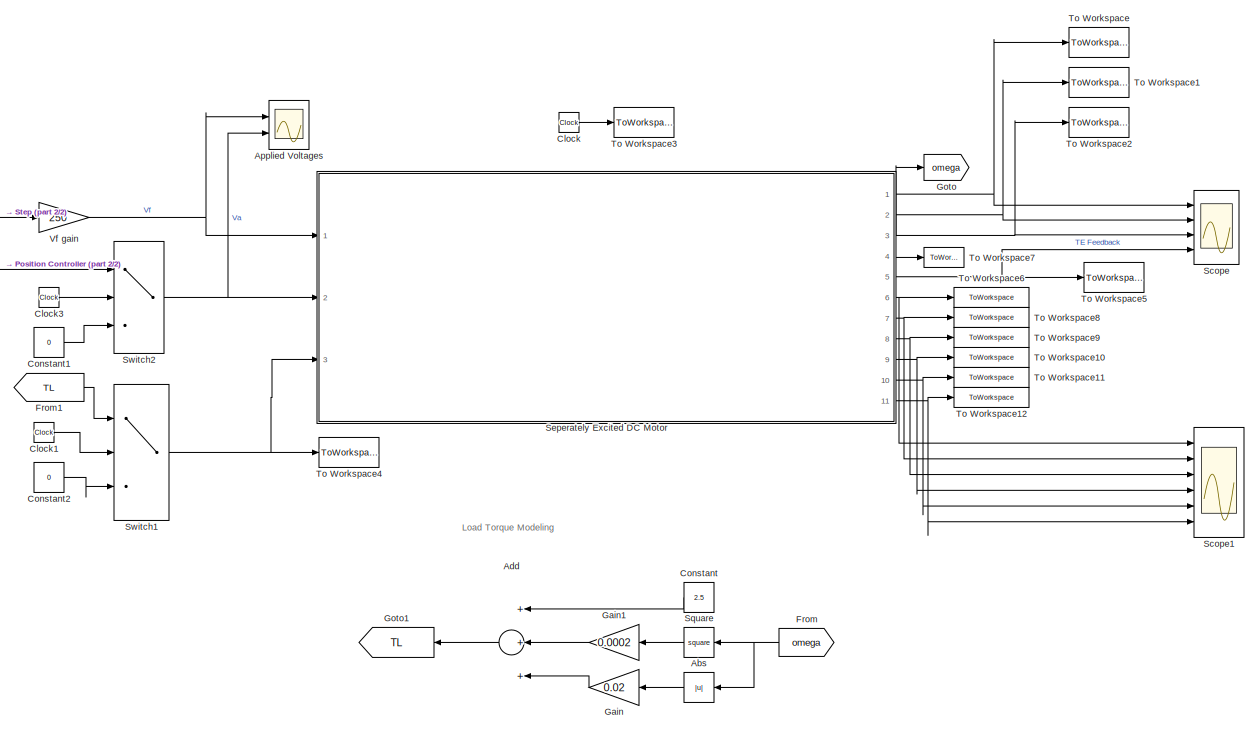
[diagram: root canvas - part 1/2, center side, full height]
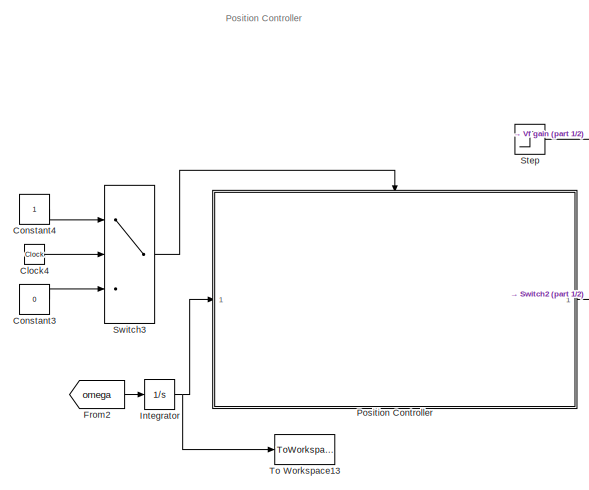
[diagram: root canvas - part 2/2, middle left region]
MODEL slx_37ec0f512aec
KIND model
CONFIG AbsTol = auto
CONFIG EnableMultiTasking = off
CONFIG FixedStep = 10e-6
CONFIG MaxStep = auto
CONFIG MinStep = auto
CONFIG RelTol = 1e-3
CONFIG SampleTimeConstraint = Unconstrained
CONFIG Solver = VariableStepAuto
CONFIG SolverName = VariableStepAuto
CONFIG StartTime = 0.0
CONFIG StopFcn = run PlotResults.m
CONFIG StopTime = 3
BLOCK [Abs] Abs
  SaturateOnIntegerOverflow = off
BLOCK [Sum] Add
  InputSameDT = off
  Inputs = +++
  OutDataTypeStr = Inherit: Inherit via internal rule
  Ports = [3, 1]
  SaturateOnIntegerOverflow = off
BLOCK [Scope] Applied Voltages 
  Floating = off
  NumInputPorts = 2
  Ports = [2]
  ScopeSpecificationString = Simulink.scopes.TimeScopeBlockCfg('CurrentConfiguration', extmgr.ConfigurationSet(extmgr.Configuration('Core','General UI',true),extmgr.Configuration('Core','Source UI',true),extmgr.Configuration('Sources','WiredSimulink',true,'DataLoggingVariableName','ScopeData1'),extmgr.Configuration('Visuals','Time Domain',true,'SerializedDisplays',{struct('MinYLimReal','150.00000','MaxYLimReal','350.00000','Y...<+1962ch>
BLOCK [Clock] Clock
BLOCK [Clock] Clock1
BLOCK [Clock] Clock3
BLOCK [Clock] Clock4
BLOCK [Constant] Constant
  Value = 2.5
BLOCK [Constant] Constant1
  Value = 0
BLOCK [Constant] Constant2
  Value = 0
BLOCK [Constant] Constant3
  Value = 0
BLOCK [Constant] Constant4
BLOCK [From] From
  GotoTag = omega
BLOCK [From] From1
  GotoTag = TL
BLOCK [From] From2
  GotoTag = omega
BLOCK [Gain] Gain
  Gain = 0.02
  OutDataTypeStr = Inherit: Inherit via internal rule
  ParamDataTypeStr = Inherit: Inherit via internal rule
  SaturateOnIntegerOverflow = off
BLOCK [Gain] Gain1
  Gain = 0.0002
  OutDataTypeStr = Inherit: Inherit via internal rule
  ParamDataTypeStr = Inherit: Inherit via internal rule
  SaturateOnIntegerOverflow = off
BLOCK [Goto] Goto
  GotoTag = omega
BLOCK [Goto] Goto1
  GotoTag = TL
BLOCK [Integrator] Integrator
  Ports = [1, 1]
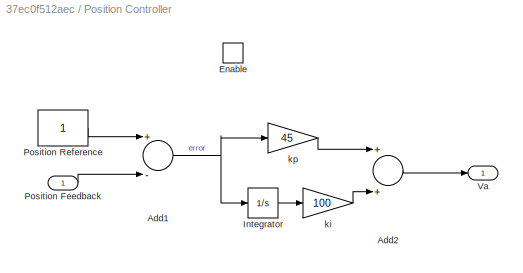
BLOCK [SubSystem] Position Controller
  Ports = [1, 1, 1]
  RequestExecContextInheritance = off
BLOCK [Sum] Position Controller/Add1
  InputSameDT = off
  Inputs = +-
  OutDataTypeStr = Inherit: Inherit via internal rule
  Ports = [2, 1]
  SaturateOnIntegerOverflow = off
BLOCK [Sum] Position Controller/Add2
  InputSameDT = off
  OutDataTypeStr = Inherit: Inherit via internal rule
  Ports = [2, 1]
  SaturateOnIntegerOverflow = off
BLOCK [EnablePort] Position Controller/Enable
  Ports = []
BLOCK [Integrator] Position Controller/Integrator
  Ports = [1, 1]
BLOCK [Inport] Position Controller/Position Feedback
  IconDisplay = Port number
BLOCK [Constant] Position Controller/Position Reference
BLOCK [Outport] Position Controller/Va
  IconDisplay = Port number
BLOCK [Gain] Position Controller/ki
  Gain = 100
  OutDataTypeStr = Inherit: Inherit via internal rule
  ParamDataTypeStr = Inherit: Inherit via internal rule
  SaturateOnIntegerOverflow = off
BLOCK [Gain] Position Controller/kp
  Gain = 45
  OutDataTypeStr = Inherit: Inherit via internal rule
  ParamDataTypeStr = Inherit: Inherit via internal rule
  SaturateOnIntegerOverflow = off
BLOCK [Scope] Scope
  Floating = off
  NumInputPorts = 4
  Ports = [4]
  ScopeSpecificationString = Simulink.scopes.TimeScopeBlockCfg('CurrentConfiguration', extmgr.ConfigurationSet(extmgr.Configuration('Core','General UI',true),extmgr.Configuration('Core','Source UI',true),extmgr.Configuration('Sources','WiredSimulink',true),extmgr.Configuration('Visuals','Time Domain',true,'SerializedDisplays',{struct('MinYLimReal','-257.60747','MaxYLimReal','71.03774','YLabelReal','','MinYLimMag',' 0.00000','...<+1487ch>
BLOCK [Scope] Scope1
  Floating = off
  NumInputPorts = 6
  Ports = [6]
  ScopeSpecificationString = Simulink.scopes.TimeScopeBlockCfg('CurrentConfiguration', extmgr.ConfigurationSet(extmgr.Configuration('Core','General UI',true),extmgr.Configuration('Core','Source UI',true),extmgr.Configuration('Sources','WiredSimulink',true,'DataLoggingVariableName','ScopeData1'),extmgr.Configuration('Visuals','Time Domain',true,'SerializedDisplays',{struct('MinYLimReal','-2.15465','MaxYLimReal','17.26766','YLa...<+1585ch>
BLOCK [ModelReference] Seperately Excited DC Motor 
  ModelNameDialog = SeperatelyExcited.slx
  ModelReferenceVersion = 1.28
  Ports = [3, 11]
BLOCK [Math] Square
  Operator = square
  Ports = [1, 1]
BLOCK [Step] Step
  SampleTime = 0
  Time = 0
BLOCK [Switch] Switch1
  Criteria = u2 > Threshold
  InputSameDT = off
  SaturateOnIntegerOverflow = off
  Threshold = 0.5
BLOCK [Switch] Switch2
  Criteria = u2 > Threshold
  InputSameDT = off
  SaturateOnIntegerOverflow = off
  Threshold = 0.5
BLOCK [Switch] Switch3
  Criteria = u2 > Threshold
  InputSameDT = off
  SaturateOnIntegerOverflow = off
  Threshold = 0.5
BLOCK [ToWorkspace] To Workspace
  FixptAsFi = on
  MaxDataPoints = inf
  Ports = [1]
  SampleTime = -1
  SaveFormat = Timeseries
  VariableName = i_a
BLOCK [ToWorkspace] To Workspace1
  FixptAsFi = on
  MaxDataPoints = inf
  Ports = [1]
  SampleTime = -1
  SaveFormat = Timeseries
  VariableName = i_f
BLOCK [ToWorkspace] To Workspace10
  FixptAsFi = on
  MaxDataPoints = inf
  Ports = [1]
  SampleTime = -1
  SaveFormat = Timeseries
  VariableName = MechanicalPower
BLOCK [ToWorkspace] To Workspace11
  FixptAsFi = on
  MaxDataPoints = inf
  Ports = [1]
  SampleTime = -1
  SaveFormat = Timeseries
  VariableName = LostEnergy
BLOCK [ToWorkspace] To Workspace12
  FixptAsFi = on
  MaxDataPoints = inf
  Ports = [1]
  SampleTime = -1
  SaveFormat = Timeseries
  VariableName = LostPower
BLOCK [ToWorkspace] To Workspace13
  FixptAsFi = on
  MaxDataPoints = inf
  Ports = [1]
  SampleTime = -1
  SaveFormat = Timeseries
  VariableName = theta
BLOCK [ToWorkspace] To Workspace2
  FixptAsFi = on
  MaxDataPoints = inf
  Ports = [1]
  SampleTime = -1
  SaveFormat = Timeseries
  VariableName = omega
BLOCK [ToWorkspace] To Workspace3
  FixptAsFi = on
  MaxDataPoints = inf
  Ports = [1]
  SampleTime = -1
  SaveFormat = Timeseries
  VariableName = time
BLOCK [ToWorkspace] To Workspace4
  FixptAsFi = on
  MaxDataPoints = inf
  Ports = [1]
  SampleTime = -1
  SaveFormat = Timeseries
  VariableName = TL
BLOCK [ToWorkspace] To Workspace5
  FixptAsFi = on
  MaxDataPoints = inf
  Ports = [1]
  SampleTime = -1
  SaveFormat = Timeseries
  VariableName = TE
BLOCK [ToWorkspace] To Workspace6
  FixptAsFi = on
  MaxDataPoints = inf
  Ports = [1]
  SampleTime = -1
  SaveFormat = Timeseries
  VariableName = ElectricEnergy
BLOCK [ToWorkspace] To Workspace7
  FixptAsFi = on
  MaxDataPoints = inf
  Ports = [1]
  SampleTime = -1
  SaveFormat = Timeseries
  VariableName = RPM
BLOCK [ToWorkspace] To Workspace8
  FixptAsFi = on
  MaxDataPoints = inf
  Ports = [1]
  SampleTime = -1
  SaveFormat = Timeseries
  VariableName = ElectricPower
BLOCK [ToWorkspace] To Workspace9
  FixptAsFi = on
  MaxDataPoints = inf
  Ports = [1]
  SampleTime = -1
  SaveFormat = Timeseries
  VariableName = MechanicalEnergy
BLOCK [Gain] Vf gain
  Gain = 250
  OutDataTypeStr = Inherit: Inherit via internal rule
  ParamDataTypeStr = Inherit: Inherit via internal rule
  SaturateOnIntegerOverflow = off
ANNOTATION (root): Load Torque Modeling
ANNOTATION (root): Position Controller
LINE Abs:1 -> Gain:1
LINE Add:1 -> Goto1:1
LINE Clock1:1 -> Switch1:2
LINE Clock3:1 -> Switch2:2
LINE Clock4:1 -> Switch3:2
LINE Clock:1 -> To Workspace3:1
LINE Constant1:1 -> Switch2:3
LINE Constant2:1 -> Switch1:3
LINE Constant3:1 -> Switch3:3
LINE Constant4:1 -> Switch3:1
LINE Constant:1 -> Add:1
LINE From1:1 -> Switch1:1
LINE From2:1 -> Integrator:1
NET From:1 -> Abs:1, Square:1
LINE Gain1:1 -> Add:2
LINE Gain:1 -> Add:3
NET Integrator:1 -> Position Controller:1, To Workspace13:1
NET Position Controller/Add1:1 -> Position Controller/Integrator:1, Position Controller/kp:1
LINE Position Controller/Add2:1 -> Position Controller/Va:1
LINE Position Controller/Integrator:1 -> Position Controller/ki:1
LINE Position Controller/Position Feedback:1 -> Position Controller/Add1:2
LINE Position Controller/Position Reference:1 -> Position Controller/Add1:1
LINE Position Controller/ki:1 -> Position Controller/Add2:2
LINE Position Controller/kp:1 -> Position Controller/Add2:1
LINE Position Controller:1 -> Switch2:1
NET Seperately Excited DC Motor :1 -> Scope:1, To Workspace:1
NET Seperately Excited DC Motor :10 -> Scope1:5, To Workspace11:1
NET Seperately Excited DC Motor :11 -> Scope1:6, To Workspace12:1
NET Seperately Excited DC Motor :2 -> Scope:2, To Workspace1:1
NET Seperately Excited DC Motor :3 -> Goto:1, Scope:3, To Workspace2:1
LINE Seperately Excited DC Motor :4 -> To Workspace7:1
NET Seperately Excited DC Motor :5 -> Scope:4, To Workspace5:1
NET Seperately Excited DC Motor :6 -> Scope1:1, To Workspace6:1
NET Seperately Excited DC Motor :7 -> Scope1:2, To Workspace8:1
NET Seperately Excited DC Motor :8 -> Scope1:3, To Workspace9:1
NET Seperately Excited DC Motor :9 -> Scope1:4, To Workspace10:1
LINE Square:1 -> Gain1:1
LINE Step:1 -> Vf gain:1
NET Switch1:1 -> Seperately Excited DC Motor :3, To Workspace4:1
NET Switch2:1 -> Applied Voltages :2, Seperately Excited DC Motor :2
LINE Switch3:1 -> Position Controller:enable
NET Vf gain:1 -> Applied Voltages :1, Seperately Excited DC Motor :1
note: NET lines group one-source signal fan-out (src -> all destinations, sorted); 1:1 wires keep LINE
